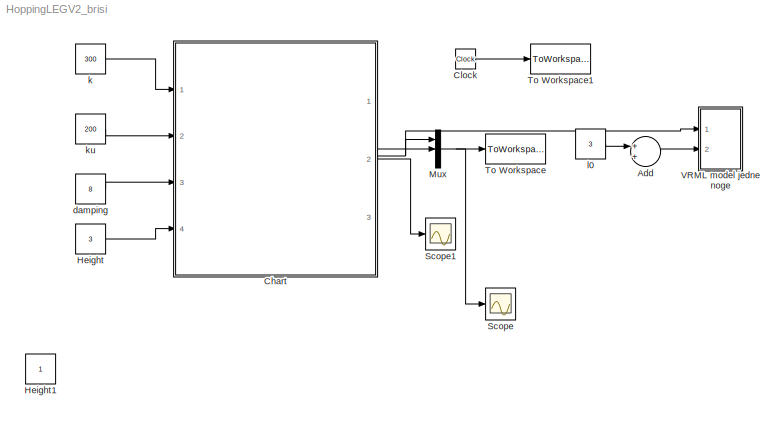
MODEL HoppingLEGV2_brisi
KIND model
BLOCK [Sum] Add
  InputSameDT = off
  OutDataTypeStr = Inherit: Inherit via internal rule
  Ports = [2, 1]
  SID = 80
  SaturateOnIntegerOverflow = off
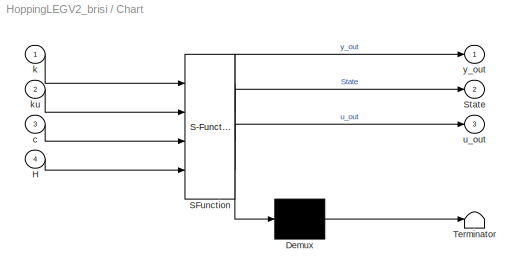
BLOCK [SubSystem] Chart
  ErrorFcn = Stateflow.Translate.translate
  FunctionWithSeparateData = off
  MaskDescription = Stateflow diagram
  MaskDisplay = plot(sf('Private','sfblk','xIcon'),sf('Private','sfblk','yIcon'));text(0.5,0,sf('Private', 'sfblk', 'tIcon'),'HorizontalAl','Center','VerticalAl','Bottom');
  MaskHideContents = off
  MaskIconFrame = off
  MaskIconOpaque = off
  MaskIconRotate = none
  MaskIconUnits = autoscale
  MaskPortRotate = default
  MaskSelfModifiable = on
  MaskType = Stateflow
  MinAlgLoopOccurrences = off
  Opaque = off
  PermitHierarchicalResolution = ExplicitOnly
  Ports = [4, 3]
  PropExecContextOutsideSubsystem = off
  RTWSystemCode = Auto
  RequestExecContextInheritance = off
  SID = 1
  TreatAsAtomicUnit = on
BLOCK [Demux] Chart/ Demux 
  Outputs = 1
  Ports = [1, 1]
  SID = 1::14
BLOCK [S-Function] Chart/ SFunction 
  EnableBusSupport = on
  FunctionName = sf_sfun
  PortCounts = [4 4]
  Ports = [4, 4]
  SID = 1::13
  Tag = Stateflow S-Function HoppingLEGV2_brisi 1
BLOCK [Terminator] Chart/ Terminator 
  SID = 1::18
BLOCK [Inport] Chart/H
  IconDisplay = Port number
  Port = 4
  SID = 1::28
BLOCK [Outport] Chart/State
  IconDisplay = Port number
  Port = 2
  SID = 1::30
BLOCK [Inport] Chart/c
  IconDisplay = Port number
  Port = 3
  SID = 1::27
BLOCK [Inport] Chart/k
  IconDisplay = Port number
  SID = 1::29
BLOCK [Inport] Chart/ku
  IconDisplay = Port number
  Port = 2
  SID = 1::36
BLOCK [Outport] Chart/u_out
  IconDisplay = Port number
  Port = 3
  SID = 1::31
BLOCK [Outport] Chart/y_out
  IconDisplay = Port number
  SID = 1::20
BLOCK [Clock] Clock
  Decimation = 10
  SID = 14
BLOCK [Constant] Height
  SID = 21
  Value = 3
BLOCK [Constant] Height1
  SID = 78
BLOCK [Mux] Mux
  DisplayOption = bar
  Inputs = 3
  Ports = [3, 1]
  SID = 7
BLOCK [Scope] Scope
  DataFormat = StructureWithTime
  Floating = off
  NumInputPorts = 1
  Ports = [1]
  SID = 2
  SampleTime = 0
  TimeRange = 3
  YMax = 6.5
  YMin = 0
BLOCK [Scope] Scope1
  DataFormat = StructureWithTime
  Floating = off
  NumInputPorts = 1
  Ports = [1]
  SID = 82
  SampleTime = 0
  SaveName = ScopeData1
  TimeRange = 3
  YMax = 1
  YMin = 1
BLOCK [ToWorkspace] To Workspace
  MaxDataPoints = inf
  Ports = [1]
  SID = 13
  SampleTime = Td
  SaveFormat = Array
  VariableName = output
BLOCK [ToWorkspace] To Workspace1
  MaxDataPoints = inf
  Ports = [1]
  SID = 15
  SampleTime = Td
  SaveFormat = Array
  VariableName = t
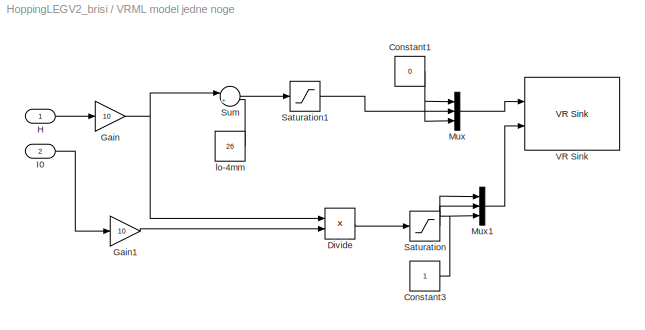
BLOCK [SubSystem] VRML model jedne noge
  FunctionWithSeparateData = off
  MaskHideContents = off
  MinAlgLoopOccurrences = off
  Opaque = off
  Ports = [2]
  PropExecContextOutsideSubsystem = off
  RTWSystemCode = Auto
  RequestExecContextInheritance = off
  SID = 62
BLOCK [Constant] VRML model jedne noge/Constant1
  SID = 65
  Value = 0
BLOCK [Constant] VRML model jedne noge/Constant3
  SID = 66
BLOCK [Product] VRML model jedne noge/Divide
  InputSameDT = off
  Inputs = */
  OutDataTypeStr = Inherit: Inherit via internal rule
  Ports = [2, 1]
  RndMeth = Floor
  SID = 67
  SaturateOnIntegerOverflow = off
BLOCK [Gain] VRML model jedne noge/Gain
  Gain = 10
  OutDataTypeStr = Inherit: Inherit via internal rule
  ParamDataTypeStr = Inherit: Inherit via internal rule
  SID = 76
  SaturateOnIntegerOverflow = off
BLOCK [Gain] VRML model jedne noge/Gain1
  Gain = 10
  OutDataTypeStr = Inherit: Inherit via internal rule
  ParamDataTypeStr = Inherit: Inherit via internal rule
  SID = 77
  SaturateOnIntegerOverflow = off
BLOCK [Inport] VRML model jedne noge/H
  IconDisplay = Port number
  SID = 63
BLOCK [Inport] VRML model jedne noge/I0
  IconDisplay = Port number
  Port = 2
  SID = 64
BLOCK [Mux] VRML model jedne noge/Mux
  DisplayOption = bar
  Inputs = 3
  Ports = [3, 1]
  SID = 68
BLOCK [Mux] VRML model jedne noge/Mux1
  DisplayOption = bar
  Inputs = 3
  Ports = [3, 1]
  SID = 69
BLOCK [Saturate] VRML model jedne noge/Saturation
  InputPortMap = u0
  LowerLimit = 0.5
  Ports = [1, 1]
  SID = 70
  UpperLimit = 1
BLOCK [Saturate] VRML model jedne noge/Saturation1
  InputPortMap = u0
  LowerLimit = 4
  Ports = [1, 1]
  SID = 71
  UpperLimit = 10000
BLOCK [Sum] VRML model jedne noge/Sum
  IconShape = round
  InputSameDT = off
  Inputs = |+-
  OutDataTypeStr = Inherit: Inherit via internal rule
  Ports = [2, 1]
  SID = 72
  SaturateOnIntegerOverflow = off
BLOCK [Reference] VRML model jedne noge/VR Sink  REF=vrlib/VR Sink
  AutoView = off
  FieldsWritten = ALFA.translation.3.1.1.double#Opruga.scale.3.1.1.double
  FigureProperties = {}
  Ports = [2]
  RemoteChange = off
  RemoteView = on
  SID = 73
  SampleTime = -1
  SourceBlock = vrlib/VR Sink
  SourceType = Virtual Reality Sink
  VideoDimensions = []
  ViewEnable = on
  WorldFileName = <path>
BLOCK [Constant] VRML model jedne noge/lo-4mm
  SID = 74
  Value = 26
BLOCK [Constant] damping
  SID = 20
  Value = 8
BLOCK [Constant] k
  SID = 19
  Value = 300
BLOCK [Constant] ku
  SID = 83
  Value = 200
BLOCK [Constant] l0
  SID = 75
  Value = 3
LINE Add:1 -> VRML model jedne noge:2
LINE Chart/ Demux :1 -> Chart/ Terminator :1
LINE Chart/ SFunction :1 -> Chart/ Demux :1
LINE Chart/ SFunction :2 -> Chart/y_out:1
LINE Chart/ SFunction :3 -> Chart/State:1
LINE Chart/ SFunction :4 -> Chart/u_out:1
LINE Chart/H:1 -> Chart/ SFunction :4
LINE Chart/c:1 -> Chart/ SFunction :3
LINE Chart/k:1 -> Chart/ SFunction :1
LINE Chart/ku:1 -> Chart/ SFunction :2
NET Chart:1 -> Mux:1, VRML model jedne noge:1
LINE Chart:2 -> Scope1:1
LINE Chart:3 -> Mux:2
LINE Clock:1 -> To Workspace1:1
LINE Height:1 -> Chart:4
NET Mux:1 -> Scope:1, To Workspace:1
NET VRML model jedne noge/Constant1:1 -> VRML model jedne noge/Mux:1, VRML model jedne noge/Mux:3
NET VRML model jedne noge/Constant3:1 -> VRML model jedne noge/Mux1:1, VRML model jedne noge/Mux1:3
LINE VRML model jedne noge/Divide:1 -> VRML model jedne noge/Saturation:1
LINE VRML model jedne noge/Gain1:1 -> VRML model jedne noge/Divide:2
NET VRML model jedne noge/Gain:1 -> VRML model jedne noge/Divide:1, VRML model jedne noge/Sum:1
LINE VRML model jedne noge/H:1 -> VRML model jedne noge/Gain:1
LINE VRML model jedne noge/I0:1 -> VRML model jedne noge/Gain1:1
LINE VRML model jedne noge/Mux1:1 -> VRML model jedne noge/VR Sink:2
LINE VRML model jedne noge/Mux:1 -> VRML model jedne noge/VR Sink:1
LINE VRML model jedne noge/Saturation1:1 -> VRML model jedne noge/Mux:2
LINE VRML model jedne noge/Saturation:1 -> VRML model jedne noge/Mux1:2
LINE VRML model jedne noge/Sum:1 -> VRML model jedne noge/Saturation1:1
LINE VRML model jedne noge/lo-4mm:1 -> VRML model jedne noge/Sum:2
LINE damping:1 -> Chart:3
LINE k:1 -> Chart:1
LINE ku:1 -> Chart:2
LINE l0:1 -> Add:1
note: NET lines group one-source signal fan-out (src -> all destinations, sorted); 1:1 wires keep LINE
CHART Chart states=2 transitions=3
  STATE_LABEL 'Swing\\ndu:\\ny_dot=yv;\\nyv_dot=-u*(k/m1+ku/m1)-uv*c/m1-g+k*l0/m1-k*s0/m1+ku*u0/m1;\\nu_dot=uv;\\nuv_dot=-u*(k/m1+ku/m1+k/m2+ku/m2)-uv*(c/m1+c/m2)+k*l0/m1+k*l0/m2-k*s0/m1-k*s0/m2+ku*u0/m1+ku*u0/m2;\\n//output\\ny_out = y;\\nu_out=y-u;\\nState=l0-u;'
  STATE_LABEL 'Stancedown\\ndu:\\ny_dot = yv;\\nyv_dot = ku/m1*(u0-u) -g;\\nu_dot=uv;\\nuv_dot=k/m2*y+yv*c/m2-u*(ku/m1+k/m2+ku/m2)-uv*c/m2 -k*s0/m2+ku*u0/m1+ku*u0/m2;\\ny_out = y;\\nu_out=y-u;\\nState = y-u;'
note: 1 file-system path scrubbed to <path> (not preserved elsewhere — flat text is the only slx artifact)
